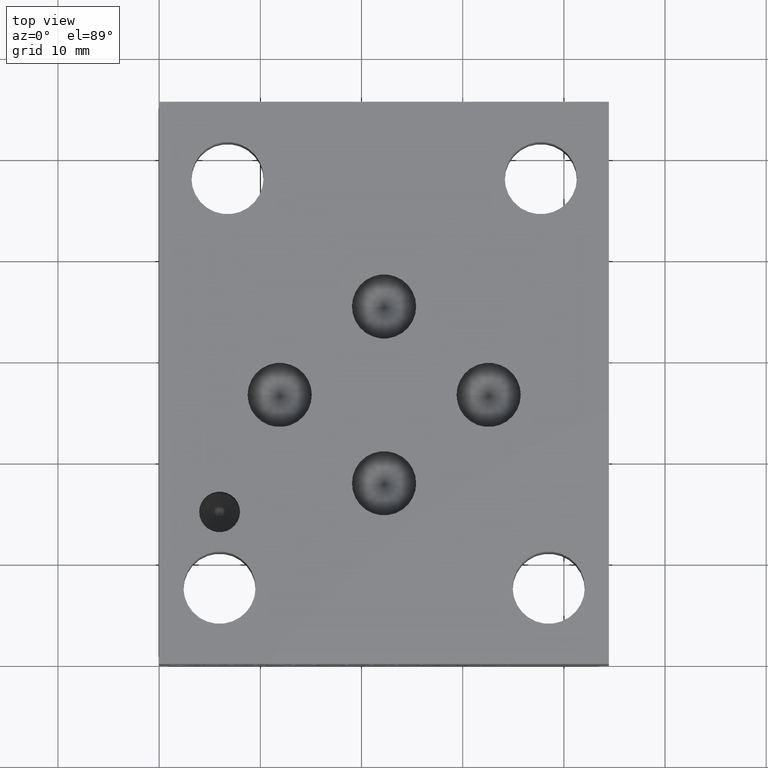
[diagram: clean part render]
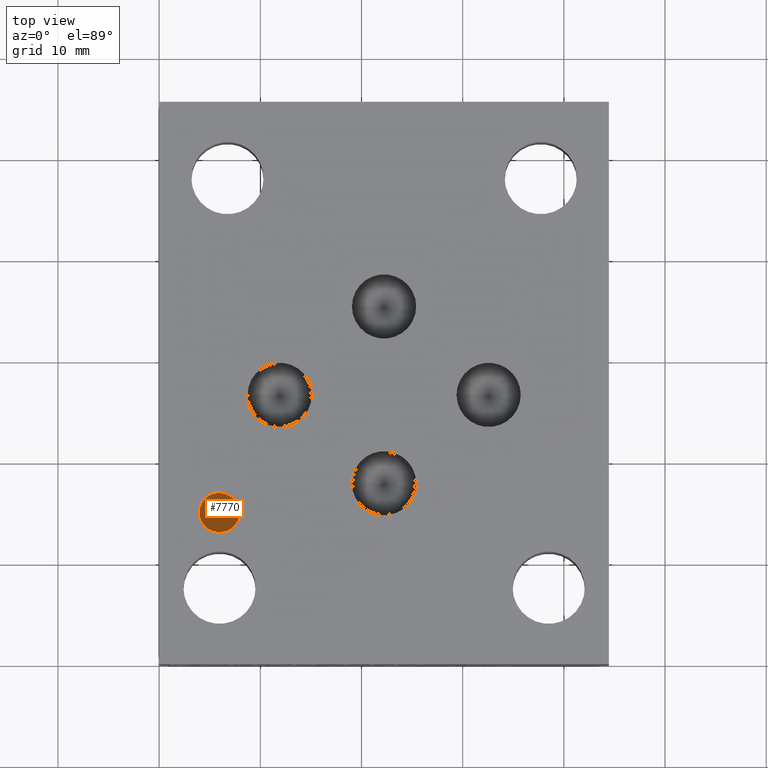
[diagram: same view with one face highlighted and labeled with its STEP entity id]
A machine part, top view. The second image highlights one B-rep face of the part: STEP entity #7770.
In plain terms, the highlighted conical surface has half-angle 60 deg.
Its self-contained STEP definition (entity closure, byte-faithful):
#22=CONICAL_SURFACE('',#8113,1.00965,1.0471975511966);
#55=CIRCLE('',#8114,2.0193);
#812=FACE_OUTER_BOUND('',#1241,.T.);
#1241=EDGE_LOOP('',(#6716,#6717,#6718));
#2075=LINE('',#13030,#2894);
#2894=VECTOR('',#9574,1.00965);
#3602=VERTEX_POINT('',#13027);
#3603=VERTEX_POINT('',#13029);
#4650=EDGE_CURVE('',#3602,#3602,#55,.T.);
#4651=EDGE_CURVE('',#3602,#3603,#2075,.T.);
#6716=ORIENTED_EDGE('',*,*,#4650,.T.);
#6717=ORIENTED_EDGE('',*,*,#4651,.T.);
#6718=ORIENTED_EDGE('',*,*,#4651,.F.);
#7770=ADVANCED_FACE('',(#812),#22,.F.);
#8113=AXIS2_PLACEMENT_3D('',#13026,#9570,#9571);
#8114=AXIS2_PLACEMENT_3D('',#13028,#9572,#9573);
#9570=DIRECTION('center_axis',(0.,0.,1.));
#9571=DIRECTION('ref_axis',(1.,0.,0.));
#9572=DIRECTION('center_axis',(0.,0.,1.));
#9573=DIRECTION('ref_axis',(1.,0.,0.));
#9574=DIRECTION('',(0.866025403784439,1.06057523872491E-16,-0.5));
#13026=CARTESIAN_POINT('Origin',(5.969,15.0368,4.24307830071269));
#13027=CARTESIAN_POINT('',(3.9497,15.0368,4.826));
#13028=CARTESIAN_POINT('Origin',(5.969,15.0368,4.826));
#13029=CARTESIAN_POINT('',(5.969,15.0368,3.66015660142539));
#13030=CARTESIAN_POINT('',(4.95935,15.0368,4.24307830071269));